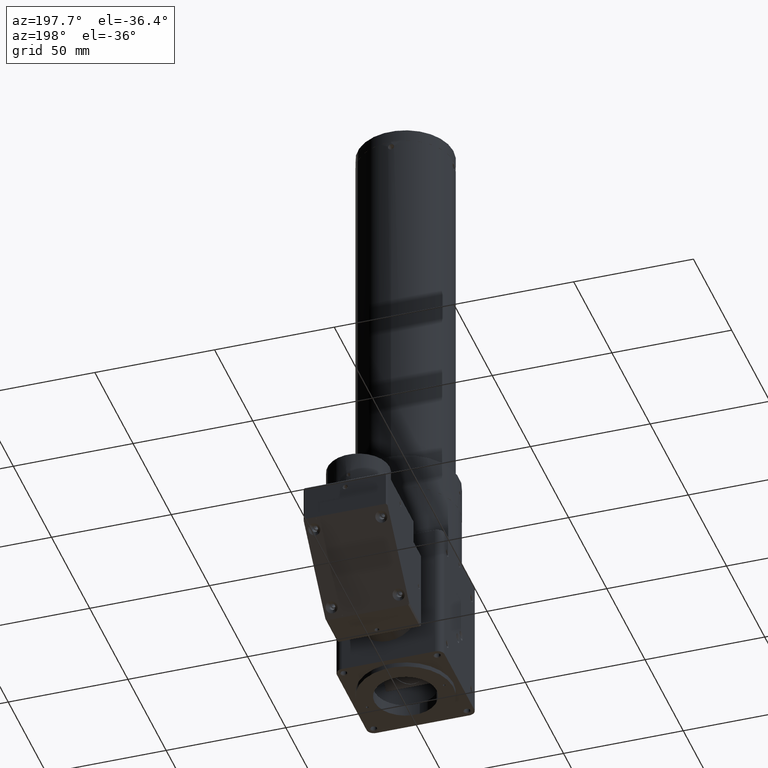
[diagram: clean part render]
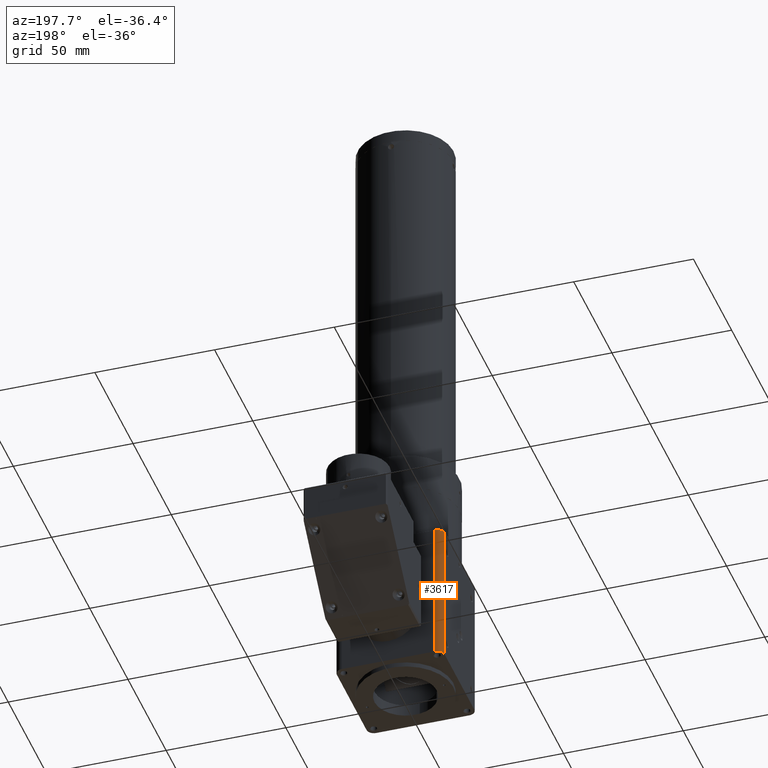
[diagram: same view with one face highlighted and labeled with its STEP entity id]
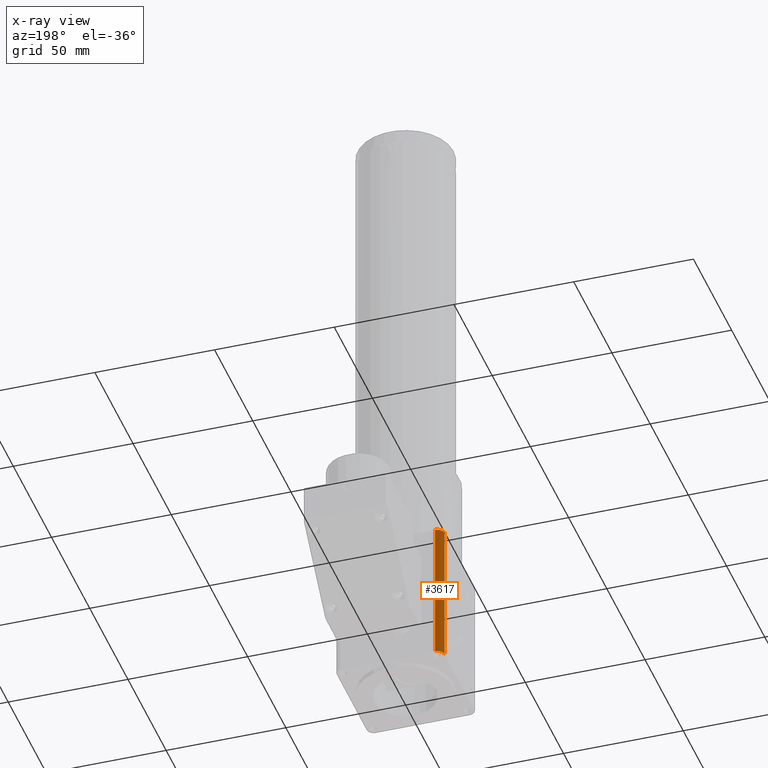
[diagram: x-ray of the same camera — body ghosted, the highlighted face saturated]
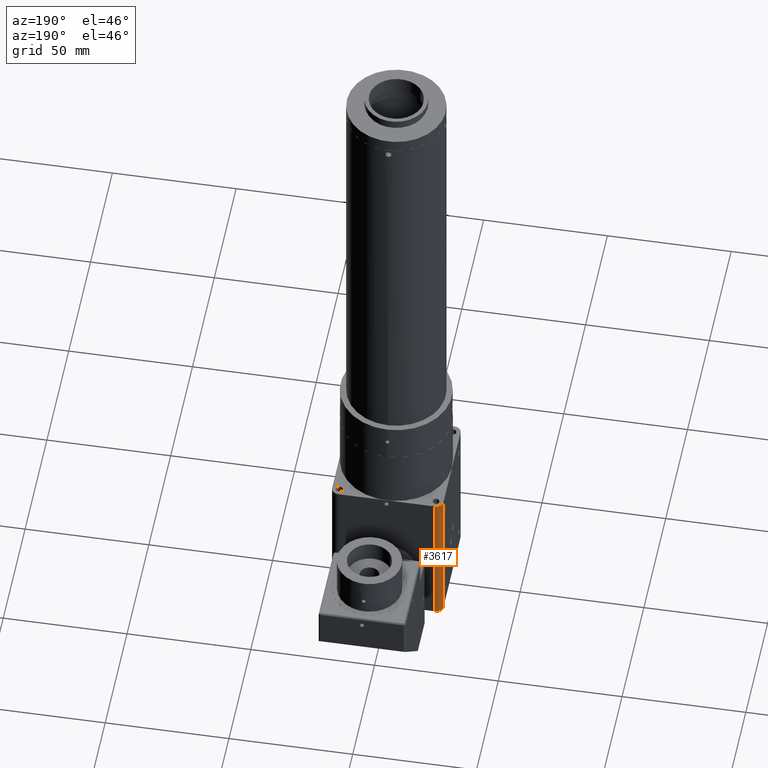
[diagram: same view with one face highlighted and labeled with its STEP entity id]
A machine part, auxiliary view. The second image highlights one B-rep face of the part: STEP entity #3617.
The next image is the same camera in x-ray: the body ghosted, the highlighted face saturated — about 0% of this face is hidden behind the body in this view.
A second angle (auxiliary view) of the same face is appended — the face is thin or edge-on in the first view.
In plain terms, the highlighted cylindrical surface (edge-blend (fillet) strip) has radius 3 mm, axis along (0, 0, -1).
Its self-contained STEP definition (entity closure, byte-faithful):
#87 = EDGE_LOOP ( 'NONE', ( #6535, #1790, #3714, #9442 ) ) ;
#150 = AXIS2_PLACEMENT_3D ( 'NONE', #8698, #702, #5926 ) ;
#247 = LINE ( 'NONE', #8984, #9814 ) ;
#702 = DIRECTION ( 'NONE',  ( 0.000000000000000000, 0.000000000000000000, -1.000000000000000000 ) ) ;
#790 = DIRECTION ( 'NONE',  ( -0.000000000000000000, -0.000000000000000000, 1.000000000000000000 ) ) ;
#967 = CARTESIAN_POINT ( 'NONE',  ( -19.50000000000000355, 22.50000000000000355, 60.00000000000000000 ) ) ;
#993 = CARTESIAN_POINT ( 'NONE',  ( -19.50000000000000355, 22.50000000000000355, 60.00000000000000000 ) ) ;
#1374 = CARTESIAN_POINT ( 'NONE',  ( -19.50000000000000355, 22.50000000000000355, 0.000000000000000000 ) ) ;
#1443 = VERTEX_POINT ( 'NONE', #4339 ) ;
#1790 = ORIENTED_EDGE ( 'NONE', *, *, #5130, .T. ) ;
#2898 = DIRECTION ( 'NONE',  ( 0.000000000000000000, 0.000000000000000000, 1.000000000000000000 ) ) ;
#3617 = ADVANCED_FACE ( 'NONE', ( #10555 ), #6159, .T. ) ;
#3710 = AXIS2_PLACEMENT_3D ( 'NONE', #3925, #4972, #6657 ) ;
#3714 = ORIENTED_EDGE ( 'NONE', *, *, #4527, .F. ) ;
#3925 = CARTESIAN_POINT ( 'NONE',  ( -19.50000000000000355, 19.50000000000000355, 0.000000000000000000 ) ) ;
#4339 = CARTESIAN_POINT ( 'NONE',  ( -22.50000000000000355, 19.50000000000000355, 0.000000000000000000 ) ) ;
#4527 = EDGE_CURVE ( 'NONE', #5687, #10403, #7929, .T. ) ;
#4636 = VECTOR ( 'NONE', #6209, 1000.000000000000000 ) ;
#4972 = DIRECTION ( 'NONE',  ( -0.000000000000000000, -0.000000000000000000, 1.000000000000000000 ) ) ;
#5130 = EDGE_CURVE ( 'NONE', #1443, #10403, #247, .T. ) ;
#5335 = LINE ( 'NONE', #993, #4636 ) ;
#5687 = VERTEX_POINT ( 'NONE', #967 ) ;
#5926 = DIRECTION ( 'NONE',  ( -1.000000000000000000, 0.000000000000000000, 0.000000000000000000 ) ) ;
#6060 = DIRECTION ( 'NONE',  ( -1.000000000000000000, 0.000000000000000000, 0.000000000000000000 ) ) ;
#6159 = CYLINDRICAL_SURFACE ( 'NONE', #150, 2.999999999999999112 ) ;
#6209 = DIRECTION ( 'NONE',  ( 0.000000000000000000, 0.000000000000000000, -1.000000000000000000 ) ) ;
#6535 = ORIENTED_EDGE ( 'NONE', *, *, #8052, .T. ) ;
#6657 = DIRECTION ( 'NONE',  ( -1.000000000000000000, 0.000000000000000000, 0.000000000000000000 ) ) ;
#6836 = AXIS2_PLACEMENT_3D ( 'NONE', #11166, #790, #6060 ) ;
#6909 = CARTESIAN_POINT ( 'NONE',  ( -22.50000000000000355, 19.50000000000000355, 60.00000000000000000 ) ) ;
#7055 = CIRCLE ( 'NONE', #3710, 2.999999999999999112 ) ;
#7363 = EDGE_CURVE ( 'NONE', #5687, #10807, #5335, .T. ) ;
#7929 = CIRCLE ( 'NONE', #6836, 2.999999999999999112 ) ;
#8052 = EDGE_CURVE ( 'NONE', #10807, #1443, #7055, .T. ) ;
#8698 = CARTESIAN_POINT ( 'NONE',  ( -19.50000000000000355, 19.50000000000000355, 60.00000000000000000 ) ) ;
#8984 = CARTESIAN_POINT ( 'NONE',  ( -22.50000000000000355, 19.50000000000000355, 60.00000000000000000 ) ) ;
#9442 = ORIENTED_EDGE ( 'NONE', *, *, #7363, .T. ) ;
#9814 = VECTOR ( 'NONE', #2898, 1000.000000000000000 ) ;
#10403 = VERTEX_POINT ( 'NONE', #6909 ) ;
#10555 = FACE_OUTER_BOUND ( 'NONE', #87, .T. ) ;
#10807 = VERTEX_POINT ( 'NONE', #1374 ) ;
#11166 = CARTESIAN_POINT ( 'NONE',  ( -19.50000000000000355, 19.50000000000000355, 60.00000000000000000 ) ) ;